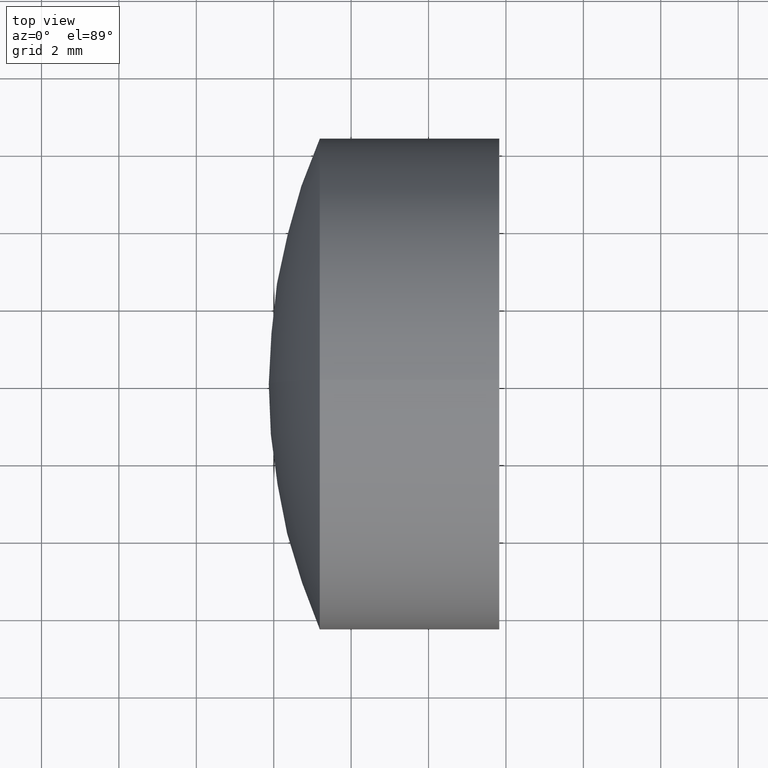
[diagram: clean part render]
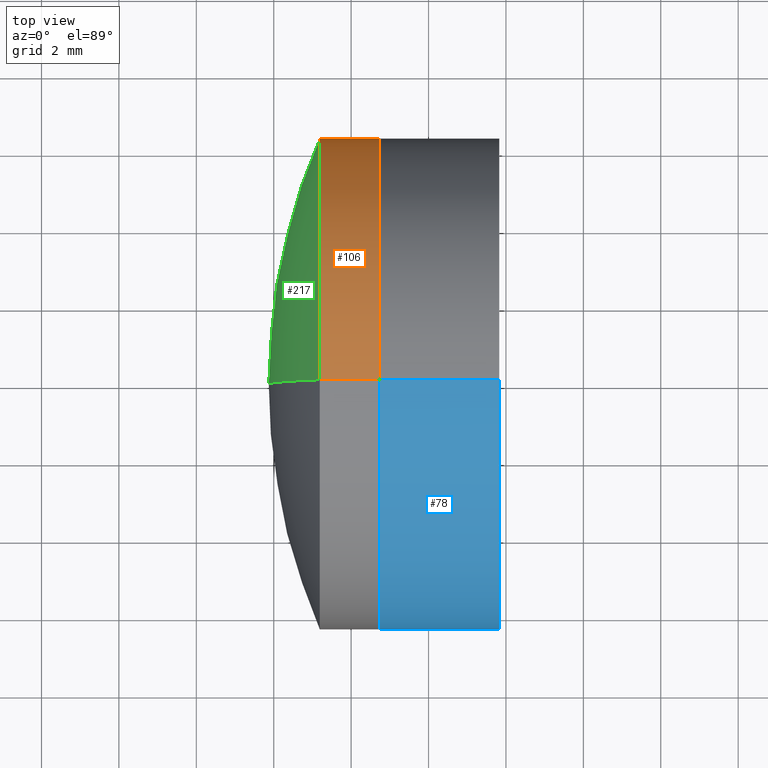
[diagram: same view with three faces highlighted in distinct colors, each labeled with its STEP entity id]
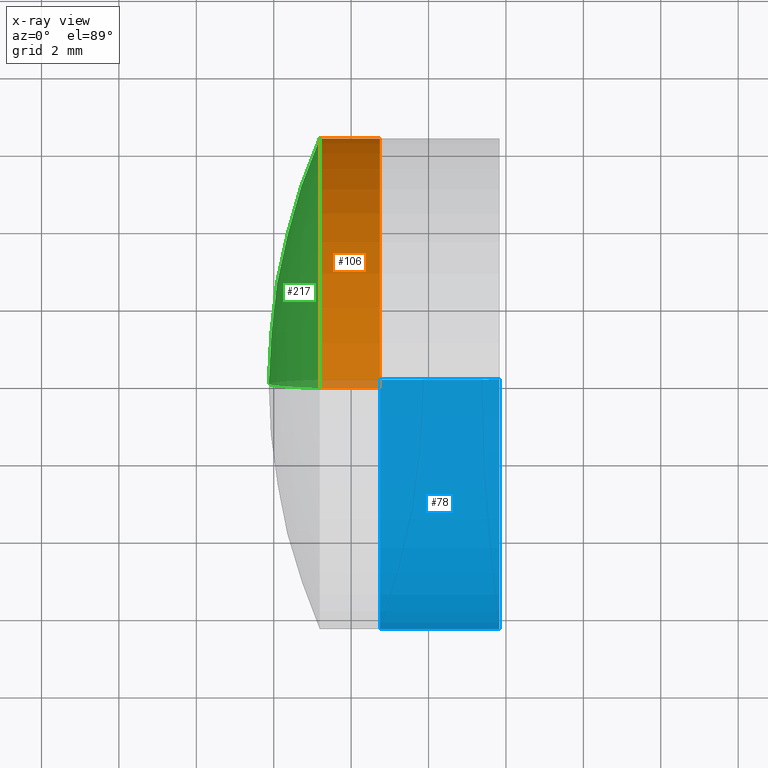
[diagram: x-ray of the same camera — body ghosted, the three highlighted faces saturated]
A machine part, top view with three faces highlighted in distinct colors.
The next image is the same camera in x-ray (body ghosted, the three faces saturated) — at least one of them is partly hidden behind the body in this view.
Their STEP definitions:

[orange] entity #106 — the highlighted cylindrical surface (partial cylindrical patch) has radius 6.35 mm, axis along (-1, -0, -0).
#4 = EDGE_CURVE ( 'NONE', #327, #241, #297, .T. ) ;
#24 = LINE ( 'NONE', #156, #318 ) ;
#31 = FACE_OUTER_BOUND ( 'NONE', #298, .T. ) ;
#42 = DIRECTION ( 'NONE',  ( 0.0000000000000000000, 0.0000000000000000000, 1.000000000000000000 ) ) ;
#48 = ORIENTED_EDGE ( 'NONE', *, *, #4, .T. ) ;
#66 = DIRECTION ( 'NONE',  ( -1.000000000000000000, -0.0000000000000000000, -0.0000000000000000000 ) ) ;
#92 = DIRECTION ( 'NONE',  ( -1.000000000000000000, -0.0000000000000000000, -0.0000000000000000000 ) ) ;
#96 = CARTESIAN_POINT ( 'NONE',  ( 28.74217880449237900, 7.776507174585701000E-016, -6.350000000000006800 ) ) ;
#106 = ADVANCED_FACE ( 'NONE', ( #31 ), #110, .T. ) ;
#110 = CYLINDRICAL_SURFACE ( 'NONE', #211, 6.350000000000006800 ) ;
#111 = DIRECTION ( 'NONE',  ( 0.0000000000000000000, 0.0000000000000000000, 1.000000000000000000 ) ) ;
#126 = CARTESIAN_POINT ( 'NONE',  ( -0.8160621761658039000, 0.0000000000000000000, 0.0000000000000000000 ) ) ;
#132 = EDGE_CURVE ( 'NONE', #327, #213, #330, .T. ) ;
#140 = ORIENTED_EDGE ( 'NONE', *, *, #132, .F. ) ;
#156 = CARTESIAN_POINT ( 'NONE',  ( -0.8160621761658039000, 7.776507174585701000E-016, -6.350000000000006800 ) ) ;
#165 = AXIS2_PLACEMENT_3D ( 'NONE', #221, #305, #111 ) ;
#174 = DIRECTION ( 'NONE',  ( -1.000000000000000000, -0.0000000000000000000, -0.0000000000000000000 ) ) ;
#178 = DIRECTION ( 'NONE',  ( -1.000000000000000000, -0.0000000000000000000, -0.0000000000000000000 ) ) ;
#186 = ORIENTED_EDGE ( 'NONE', *, *, #216, .T. ) ;
#202 = ORIENTED_EDGE ( 'NONE', *, *, #321, .F. ) ;
#210 = CARTESIAN_POINT ( 'NONE',  ( 27.19049754587739900, 0.0000000000000000000, -6.350000000000000500 ) ) ;
#211 = AXIS2_PLACEMENT_3D ( 'NONE', #126, #66, #42 ) ;
#212 = VERTEX_POINT ( 'NONE', #210 ) ;
#213 = VERTEX_POINT ( 'NONE', #290 ) ;
#216 = EDGE_CURVE ( 'NONE', #241, #212, #24, .T. ) ;
#221 = CARTESIAN_POINT ( 'NONE',  ( 28.74217880449237900, 0.0000000000000000000, 0.0000000000000000000 ) ) ;
#241 = VERTEX_POINT ( 'NONE', #96 ) ;
#254 = DIRECTION ( 'NONE',  ( 0.0000000000000000000, 0.0000000000000000000, 1.000000000000000000 ) ) ;
#257 = VECTOR ( 'NONE', #178, 1000.000000000000000 ) ;
#268 = AXIS2_PLACEMENT_3D ( 'NONE', #281, #92, #254 ) ;
#281 = CARTESIAN_POINT ( 'NONE',  ( 27.19049754587739500, 0.0000000000000000000, 0.0000000000000000000 ) ) ;
#283 = CARTESIAN_POINT ( 'NONE',  ( -0.8160621761658039000, 0.0000000000000000000, 6.350000000000006800 ) ) ;
#288 = CIRCLE ( 'NONE', #268, 6.350000000000005900 ) ;
#290 = CARTESIAN_POINT ( 'NONE',  ( 27.19049754587739900, -7.776507174585694100E-016, 6.350000000000011200 ) ) ;
#297 = CIRCLE ( 'NONE', #165, 6.350000000000006800 ) ;
#298 = EDGE_LOOP ( 'NONE', ( #48, #186, #202, #140 ) ) ;
#305 = DIRECTION ( 'NONE',  ( -1.000000000000000000, -0.0000000000000000000, -0.0000000000000000000 ) ) ;
#314 = CARTESIAN_POINT ( 'NONE',  ( 28.74217880449237900, 0.0000000000000000000, 6.350000000000006800 ) ) ;
#318 = VECTOR ( 'NONE', #174, 1000.000000000000000 ) ;
#321 = EDGE_CURVE ( 'NONE', #213, #212, #288, .T. ) ;
#327 = VERTEX_POINT ( 'NONE', #314 ) ;
#330 = LINE ( 'NONE', #283, #257 ) ;

[blue] entity #78 — the highlighted cylindrical surface (partial cylindrical patch) has radius 6.35 mm, axis along (-1, -0, -0).
#5 = ORIENTED_EDGE ( 'NONE', *, *, #185, .F. ) ;
#13 = EDGE_CURVE ( 'NONE', #146, #133, #20, .T. ) ;
#20 = CIRCLE ( 'NONE', #214, 6.349999999999990800 ) ;
#22 = CARTESIAN_POINT ( 'NONE',  ( -0.5519199926577972300, 7.776507174585682300E-016, -6.349999999999990800 ) ) ;
#25 = LINE ( 'NONE', #307, #317 ) ;
#32 = DIRECTION ( 'NONE',  ( -1.000000000000000000, -0.0000000000000000000, -0.0000000000000000000 ) ) ;
#35 = EDGE_CURVE ( 'NONE', #295, #215, #82, .T. ) ;
#58 = DIRECTION ( 'NONE',  ( 0.0000000000000000000, 0.0000000000000000000, 1.000000000000000000 ) ) ;
#63 = EDGE_LOOP ( 'NONE', ( #5, #70, #130, #166 ) ) ;
#65 = CARTESIAN_POINT ( 'NONE',  ( 28.74217880449238300, -7.776507174585678400E-016, 6.349999999999989000 ) ) ;
#70 = ORIENTED_EDGE ( 'NONE', *, *, #35, .T. ) ;
#73 = EDGE_CURVE ( 'NONE', #215, #133, #25, .T. ) ;
#78 = ADVANCED_FACE ( 'NONE', ( #104 ), #326, .T. ) ;
#81 = CARTESIAN_POINT ( 'NONE',  ( 28.74217880449238300, 0.0000000000000000000, 0.0000000000000000000 ) ) ;
#82 = CIRCLE ( 'NONE', #162, 6.349999999999989900 ) ;
#99 = DIRECTION ( 'NONE',  ( -1.000000000000000000, -0.0000000000000000000, -0.0000000000000000000 ) ) ;
#104 = FACE_OUTER_BOUND ( 'NONE', #63, .T. ) ;
#109 = DIRECTION ( 'NONE',  ( 0.0000000000000000000, 0.0000000000000000000, 1.000000000000000000 ) ) ;
#122 = CARTESIAN_POINT ( 'NONE',  ( 28.74217880449238300, 0.0000000000000000000, -6.349999999999987200 ) ) ;
#124 = LINE ( 'NONE', #22, #134 ) ;
#130 = ORIENTED_EDGE ( 'NONE', *, *, #73, .T. ) ;
#133 = VERTEX_POINT ( 'NONE', #65 ) ;
#134 = VECTOR ( 'NONE', #99, 1000.000000000000000 ) ;
#141 = CARTESIAN_POINT ( 'NONE',  ( 31.82633082363418000, 0.0000000000000000000, 0.0000000000000000000 ) ) ;
#146 = VERTEX_POINT ( 'NONE', #122 ) ;
#162 = AXIS2_PLACEMENT_3D ( 'NONE', #141, #303, #109 ) ;
#166 = ORIENTED_EDGE ( 'NONE', *, *, #13, .F. ) ;
#183 = DIRECTION ( 'NONE',  ( 0.0000000000000000000, 0.0000000000000000000, 1.000000000000000000 ) ) ;
#185 = EDGE_CURVE ( 'NONE', #295, #146, #124, .T. ) ;
#214 = AXIS2_PLACEMENT_3D ( 'NONE', #81, #245, #58 ) ;
#215 = VERTEX_POINT ( 'NONE', #345 ) ;
#245 = DIRECTION ( 'NONE',  ( -1.000000000000000000, -0.0000000000000000000, -0.0000000000000000000 ) ) ;
#258 = AXIS2_PLACEMENT_3D ( 'NONE', #341, #276, #183 ) ;
#276 = DIRECTION ( 'NONE',  ( -1.000000000000000000, -0.0000000000000000000, -0.0000000000000000000 ) ) ;
#295 = VERTEX_POINT ( 'NONE', #336 ) ;
#303 = DIRECTION ( 'NONE',  ( -1.000000000000000000, -0.0000000000000000000, -0.0000000000000000000 ) ) ;
#307 = CARTESIAN_POINT ( 'NONE',  ( -0.5519199926577972300, 0.0000000000000000000, 6.349999999999990800 ) ) ;
#317 = VECTOR ( 'NONE', #32, 1000.000000000000000 ) ;
#326 = CYLINDRICAL_SURFACE ( 'NONE', #258, 6.349999999999990800 ) ;
#336 = CARTESIAN_POINT ( 'NONE',  ( 31.82633082363418000, 0.0000000000000000000, -6.349999999999999600 ) ) ;
#341 = CARTESIAN_POINT ( 'NONE',  ( -0.5519199926577972300, 0.0000000000000000000, 0.0000000000000000000 ) ) ;
#345 = CARTESIAN_POINT ( 'NONE',  ( 31.82633082363418000, -7.776507174585692200E-016, 6.349999999999999600 ) ) ;

[green] entity #217 — the highlighted spherical surface has radius 15.95 mm.
#23 = EDGE_LOOP ( 'NONE', ( #75, #219, #154 ) ) ;
#26 = AXIS2_PLACEMENT_3D ( 'NONE', #347, #195, #67 ) ;
#47 = CARTESIAN_POINT ( 'NONE',  ( 41.82197047241489700, 0.0000000000000000000, 1.018952376942791700E-014 ) ) ;
#52 = EDGE_CURVE ( 'NONE', #212, #282, #232, .T. ) ;
#67 = DIRECTION ( 'NONE',  ( 0.0000000000000000000, 0.0000000000000000000, -1.000000000000000000 ) ) ;
#71 = DIRECTION ( 'NONE',  ( 0.0000000000000000000, 1.224646799147353000E-016, -1.000000000000000000 ) ) ;
#75 = ORIENTED_EDGE ( 'NONE', *, *, #181, .F. ) ;
#86 = DIRECTION ( 'NONE',  ( 0.0000000000000000000, 1.000000000000000000, -0.0000000000000000000 ) ) ;
#92 = DIRECTION ( 'NONE',  ( -1.000000000000000000, -0.0000000000000000000, -0.0000000000000000000 ) ) ;
#154 = ORIENTED_EDGE ( 'NONE', *, *, #52, .T. ) ;
#158 = AXIS2_PLACEMENT_3D ( 'NONE', #332, #86, #333 ) ;
#171 = CIRCLE ( 'NONE', #237, 15.94999999999999900 ) ;
#181 = EDGE_CURVE ( 'NONE', #213, #282, #171, .T. ) ;
#195 = DIRECTION ( 'NONE',  ( -0.0000000000000000000, -1.000000000000000000, -0.0000000000000000000 ) ) ;
#200 = CARTESIAN_POINT ( 'NONE',  ( 25.87197047241490100, 0.0000000000000000000, 9.212867947107902300E-015 ) ) ;
#204 = SPHERICAL_SURFACE ( 'NONE', #26, 15.94999999999999900 ) ;
#210 = CARTESIAN_POINT ( 'NONE',  ( 27.19049754587739900, 0.0000000000000000000, -6.350000000000000500 ) ) ;
#212 = VERTEX_POINT ( 'NONE', #210 ) ;
#213 = VERTEX_POINT ( 'NONE', #290 ) ;
#217 = ADVANCED_FACE ( 'NONE', ( #291 ), #204, .T. ) ;
#219 = ORIENTED_EDGE ( 'NONE', *, *, #321, .T. ) ;
#232 = CIRCLE ( 'NONE', #158, 15.94999999999999900 ) ;
#234 = DIRECTION ( 'NONE',  ( 0.0000000000000000000, -1.000000000000000000, -1.224646799147353200E-016 ) ) ;
#237 = AXIS2_PLACEMENT_3D ( 'NONE', #47, #234, #71 ) ;
#254 = DIRECTION ( 'NONE',  ( 0.0000000000000000000, 0.0000000000000000000, 1.000000000000000000 ) ) ;
#268 = AXIS2_PLACEMENT_3D ( 'NONE', #281, #92, #254 ) ;
#281 = CARTESIAN_POINT ( 'NONE',  ( 27.19049754587739500, 0.0000000000000000000, 0.0000000000000000000 ) ) ;
#282 = VERTEX_POINT ( 'NONE', #200 ) ;
#288 = CIRCLE ( 'NONE', #268, 6.350000000000005900 ) ;
#290 = CARTESIAN_POINT ( 'NONE',  ( 27.19049754587739900, -7.776507174585694100E-016, 6.350000000000011200 ) ) ;
#291 = FACE_OUTER_BOUND ( 'NONE', #23, .T. ) ;
#321 = EDGE_CURVE ( 'NONE', #213, #212, #288, .T. ) ;
#332 = CARTESIAN_POINT ( 'NONE',  ( 41.82197047241489700, 0.0000000000000000000, 1.018952376942791700E-014 ) ) ;
#333 = DIRECTION ( 'NONE',  ( 0.0000000000000000000, 0.0000000000000000000, 1.000000000000000000 ) ) ;
#347 = CARTESIAN_POINT ( 'NONE',  ( 41.82197047241489700, 0.0000000000000000000, 1.018952376942791700E-014 ) ) ;